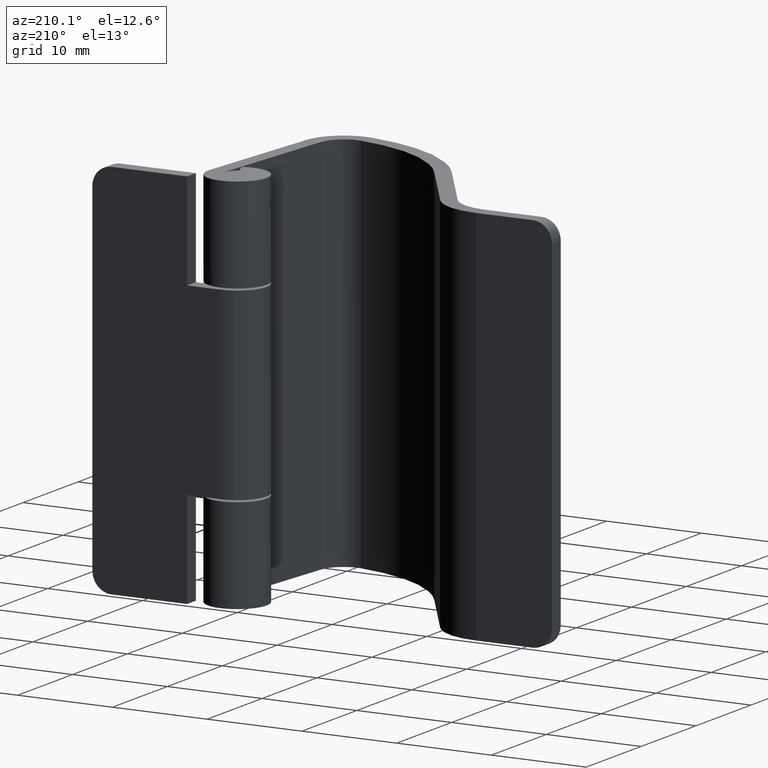
[diagram: clean part render]
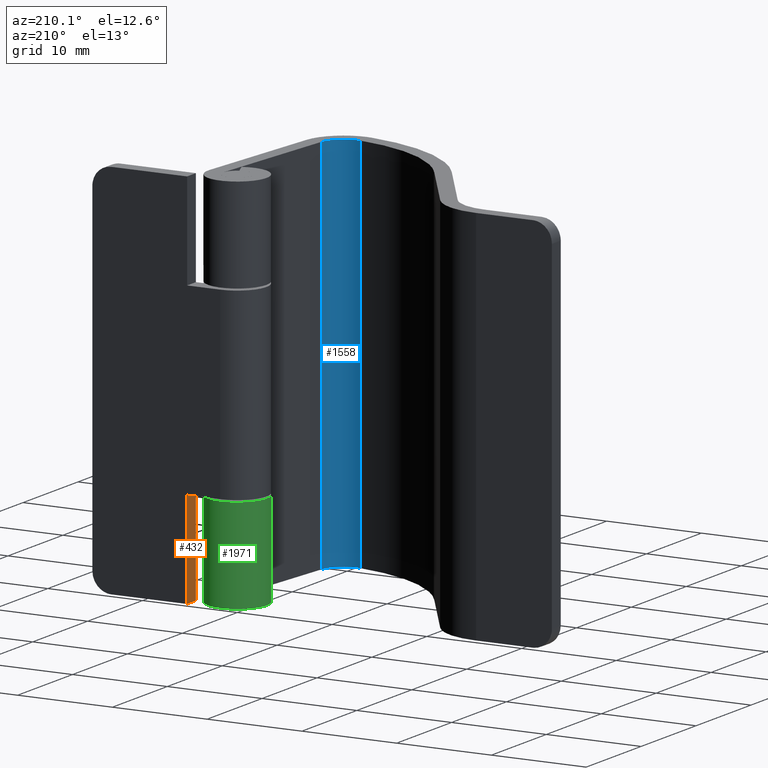
[diagram: same view with three faces highlighted in distinct colors, each labeled with its STEP entity id]
A machine part, auxiliary view with three faces highlighted in distinct colors.
Their STEP definitions:

[orange] entity #432 — the highlighted face is a freeform B-spline surface patch.
#397=CARTESIAN_POINT('',(3.499999999999915,1.420080103001106,-0.509490143588834));
#398=CARTESIAN_POINT('',(3.499999999999915,1.420080103001106,10.709493687613120));
#399=CARTESIAN_POINT('',(3.499999999999915,3.179917939914184,-0.509490143588834));
#400=CARTESIAN_POINT('',(3.499999999999915,3.179917939914184,10.709493687613120));
#401=B_SPLINE_SURFACE_WITH_KNOTS('',1,1,((#397,#399),(#398,#400)),.UNSPECIFIED.,.F.,.F.,.U.,(2,2),(2,2),(0.0,11.218983831201960),(0.041708334948495,0.958291687403247),.UNSPECIFIED.);
#402=CARTESIAN_POINT('',(3.499999999999915,1.500000000000000,0.0));
#403=VERTEX_POINT('',#402);
#404=CARTESIAN_POINT('',(3.499999999999915,3.099998000000000,0.0));
#405=VERTEX_POINT('',#404);
#406=CARTESIAN_POINT('',(3.499999999999915,1.500000000000000,0.0));
#407=CARTESIAN_POINT('',(3.499999999999915,3.099998000000000,0.0));
#408=QUASI_UNIFORM_CURVE('',1,(#406,#407),.UNSPECIFIED.,.F.,.U.);
#409=EDGE_CURVE('',#403,#405,#408,.T.);
#410=ORIENTED_EDGE('',*,*,#409,.F.);
#411=CARTESIAN_POINT('',(3.499999999999915,1.500000000000000,10.200004000000000));
#412=VERTEX_POINT('',#411);
#413=CARTESIAN_POINT('',(3.499999999999915,1.500000000000000,10.200004000000000));
#414=CARTESIAN_POINT('',(3.499999999999915,1.500000000000000,0.0));
#415=QUASI_UNIFORM_CURVE('',1,(#413,#414),.UNSPECIFIED.,.F.,.U.);
#416=EDGE_CURVE('',#412,#403,#415,.T.);
#417=ORIENTED_EDGE('',*,*,#416,.F.);
#418=CARTESIAN_POINT('',(3.499999999999915,3.099998000000000,10.200004000000000));
#419=VERTEX_POINT('',#418);
#420=CARTESIAN_POINT('',(3.499999999999915,1.500000000000000,10.200004000000000));
#421=CARTESIAN_POINT('',(3.499999999999915,3.099998000000000,10.200004000000000));
#422=QUASI_UNIFORM_CURVE('',1,(#420,#421),.UNSPECIFIED.,.F.,.U.);
#423=EDGE_CURVE('',#412,#419,#422,.T.);
#424=ORIENTED_EDGE('',*,*,#423,.T.);
#425=CARTESIAN_POINT('',(3.499999999999915,3.099998000000000,10.200004000000000));
#426=CARTESIAN_POINT('',(3.499999999999915,3.099998000000000,0.0));
#427=QUASI_UNIFORM_CURVE('',1,(#425,#426),.UNSPECIFIED.,.F.,.U.);
#428=EDGE_CURVE('',#419,#405,#427,.T.);
#429=ORIENTED_EDGE('',*,*,#428,.T.);
#430=EDGE_LOOP('',(#410,#417,#424,#429));
#431=FACE_OUTER_BOUND('',#430,.T.);
#432=ADVANCED_FACE('',(#431),#401,.T.);

[blue] entity #1558 — the highlighted face is a freeform B-spline surface patch.
#1276=CARTESIAN_POINT('',(0.146199999999794,-15.539583000000000,40.0));
#1277=VERTEX_POINT('',#1276);
#1283=CARTESIAN_POINT('',(-2.722397774023725,-17.792936032875399,40.0));
#1284=VERTEX_POINT('',#1283);
#1285=CARTESIAN_POINT('',(0.146199999999794,-15.539583000000000,40.0));
#1286=CARTESIAN_POINT('',(0.051799461611755,-16.618591365731003,40.000000000000007));
#1287=CARTESIAN_POINT('',(-0.799964114912295,-17.287672320976618,40.0));
#1288=CARTESIAN_POINT('',(-1.651727691436345,-17.956753276222223,40.000000000000007));
#1289=CARTESIAN_POINT('',(-2.722397774023728,-17.792936032875421,40.0));
#1297=(BOUNDED_CURVE()B_SPLINE_CURVE(2,(#1285,#1286,#1287,#1288,#1289),.UNSPECIFIED.,.F.,.U.)B_SPLINE_CURVE_WITH_KNOTS((3,2,3),(0.0,0.500000000000000,1.0),.UNSPECIFIED.)CURVE()GEOMETRIC_REPRESENTATION_ITEM()RATIONAL_B_SPLINE_CURVE((1.0,0.917582855283460,1.0,0.917582855283460,1.0))REPRESENTATION_ITEM(''));
#1298=EDGE_CURVE('',#1277,#1284,#1297,.T.);
#1380=CARTESIAN_POINT('',(-2.722397774023725,-17.792936032875399,0.0));
#1381=VERTEX_POINT('',#1380);
#1395=CARTESIAN_POINT('',(0.146199999999794,-15.539583000000000,0.0));
#1396=VERTEX_POINT('',#1395);
#1397=CARTESIAN_POINT('',(0.146199999999794,-15.539583000000000,0.0));
#1398=CARTESIAN_POINT('',(0.051799461611755,-16.618591365731003,0.0));
#1399=CARTESIAN_POINT('',(-0.799964114912295,-17.287672320976618,0.0));
#1400=CARTESIAN_POINT('',(-1.651727691436345,-17.956753276222223,0.0));
#1401=CARTESIAN_POINT('',(-2.722397774023728,-17.792936032875421,0.0));
#1409=(BOUNDED_CURVE()B_SPLINE_CURVE(2,(#1397,#1398,#1399,#1400,#1401),.UNSPECIFIED.,.F.,.U.)B_SPLINE_CURVE_WITH_KNOTS((3,2,3),(0.0,0.500000000000000,1.0),.UNSPECIFIED.)CURVE()GEOMETRIC_REPRESENTATION_ITEM()RATIONAL_B_SPLINE_CURVE((1.0,0.917582855283460,1.0,0.917582855283460,1.0))REPRESENTATION_ITEM(''));
#1410=EDGE_CURVE('',#1396,#1381,#1409,.T.);
#1530=CARTESIAN_POINT('',(0.151817241045483,-15.461207070570090,-1.000000000000001));
#1531=CARTESIAN_POINT('',(0.151817241045483,-15.461207070570090,41.025000000000013));
#1532=CARTESIAN_POINT('',(-0.013427287885420,-18.417708022699387,-1.000000000000002));
#1533=CARTESIAN_POINT('',(-0.013427287885420,-18.417708022699387,41.024999999999999));
#1534=CARTESIAN_POINT('',(-2.900362519173444,-17.759066538558706,-1.000000000000001));
#1535=CARTESIAN_POINT('',(-2.900362519173444,-17.759066538558706,41.025000000000013));
#1543=(BOUNDED_SURFACE()B_SPLINE_SURFACE(1,2,((#1530,#1532,#1534),(#1531,#1533,#1535)),.UNSPECIFIED.,.F.,.F.,.U.)B_SPLINE_SURFACE_WITH_KNOTS((2,2),(3,3),(0.0,42.025000000000020),(0.0,4.644641494677113),.UNSPECIFIED.)GEOMETRIC_REPRESENTATION_ITEM()RATIONAL_B_SPLINE_SURFACE(((1.0,0.644198612143035,0.997189142113182),(1.0,0.644198612143035,0.997189142113182)))REPRESENTATION_ITEM('')SURFACE());
#1544=ORIENTED_EDGE('',*,*,#1298,.F.);
#1545=CARTESIAN_POINT('',(0.146199999999794,-15.539583000000000,0.0));
#1546=CARTESIAN_POINT('',(0.146199999999794,-15.539583000000000,40.0));
#1547=QUASI_UNIFORM_CURVE('',1,(#1545,#1546),.UNSPECIFIED.,.F.,.U.);
#1548=EDGE_CURVE('',#1396,#1277,#1547,.T.);
#1549=ORIENTED_EDGE('',*,*,#1548,.F.);
#1550=ORIENTED_EDGE('',*,*,#1410,.T.);
#1551=CARTESIAN_POINT('',(-2.722397774023725,-17.792936032875399,0.0));
#1552=CARTESIAN_POINT('',(-2.722397774023725,-17.792936032875399,40.0));
#1553=QUASI_UNIFORM_CURVE('',1,(#1551,#1552),.UNSPECIFIED.,.F.,.U.);
#1554=EDGE_CURVE('',#1381,#1284,#1553,.T.);
#1555=ORIENTED_EDGE('',*,*,#1554,.T.);
#1556=EDGE_LOOP('',(#1544,#1549,#1550,#1555));
#1557=FACE_OUTER_BOUND('',#1556,.T.);
#1558=ADVANCED_FACE('',(#1557),#1543,.F.);

[green] entity #1971 — the highlighted face is a freeform B-spline surface patch.
#889=CARTESIAN_POINT('',(3.088204999999790,-0.270182999999983,10.0));
#890=VERTEX_POINT('',#889);
#896=CARTESIAN_POINT('',(1.205679970024810,-2.855931509226660,10.0));
#897=VERTEX_POINT('',#896);
#898=CARTESIAN_POINT('',(1.205679970024812,-2.855931509226660,10.0));
#899=CARTESIAN_POINT('',(-0.964918357172471,-3.772286441974952,10.000000000000002));
#900=CARTESIAN_POINT('',(-2.428916450882054,-1.926233072643916,10.0));
#901=CARTESIAN_POINT('',(-3.892914544591641,-0.080179703312878,10.000000000000002));
#902=CARTESIAN_POINT('',(-2.506169561740145,1.824588475059489,10.0));
#903=CARTESIAN_POINT('',(-1.119424578888650,3.729356653431855,10.000000000000002));
#904=CARTESIAN_POINT('',(1.087064025726285,2.903153592127785,10.0));
#905=CARTESIAN_POINT('',(3.293552630341218,2.076950530823714,10.000000000000002));
#906=CARTESIAN_POINT('',(3.088204999999790,-0.270182999999985,10.0));
#914=(BOUNDED_CURVE()B_SPLINE_CURVE(2,(#898,#899,#900,#901,#902,#903,#904,#905,#906),.UNSPECIFIED.,.F.,.U.)B_SPLINE_CURVE_WITH_KNOTS((3,2,2,2,3),(0.0,0.250000000000000,0.500000000000000,0.750000000000000,1.0),.UNSPECIFIED.)CURVE()GEOMETRIC_REPRESENTATION_ITEM()RATIONAL_B_SPLINE_CURVE((1.0,0.796150056244369,1.0,0.796150056244369,1.0,0.796150056244369,1.0,0.796150056244369,1.0))REPRESENTATION_ITEM(''));
#915=EDGE_CURVE('',#897,#890,#914,.T.);
#1440=CARTESIAN_POINT('',(1.205679970024810,-2.855931509226660,0.0));
#1441=VERTEX_POINT('',#1440);
#1447=CARTESIAN_POINT('',(3.088205000000000,-0.270183000000000,0.0));
#1448=VERTEX_POINT('',#1447);
#1449=CARTESIAN_POINT('',(1.205679970024811,-2.855931509226660,0.0));
#1450=CARTESIAN_POINT('',(-0.964918357172471,-3.772286441974952,0.0));
#1451=CARTESIAN_POINT('',(-2.428916450882054,-1.926233072643916,0.0));
#1452=CARTESIAN_POINT('',(-3.892914544591638,-0.080179703312879,0.0));
#1453=CARTESIAN_POINT('',(-2.506169561740146,1.824588475059487,0.0));
#1454=CARTESIAN_POINT('',(-1.119424578888653,3.729356653431852,0.0));
#1455=CARTESIAN_POINT('',(1.087064025726281,2.903153592127787,0.0));
#1456=CARTESIAN_POINT('',(3.293552630341214,2.076950530823721,0.0));
#1457=CARTESIAN_POINT('',(3.088205000000000,-0.270183000000000,0.0));
#1465=(BOUNDED_CURVE()B_SPLINE_CURVE(2,(#1449,#1450,#1451,#1452,#1453,#1454,#1455,#1456,#1457),.UNSPECIFIED.,.F.,.U.)B_SPLINE_CURVE_WITH_KNOTS((3,2,2,2,3),(0.0,0.250000000000000,0.500000000000000,0.750000000000000,1.0),.UNSPECIFIED.)CURVE()GEOMETRIC_REPRESENTATION_ITEM()RATIONAL_B_SPLINE_CURVE((1.0,0.796150056244369,1.0,0.796150056244369,1.0,0.796150056244369,1.0,0.796150056244369,1.0))REPRESENTATION_ITEM(''));
#1466=EDGE_CURVE('',#1441,#1448,#1465,.T.);
#1622=CARTESIAN_POINT('',(1.205679970024810,-2.855931509226660,0.0));
#1623=CARTESIAN_POINT('',(1.205679970024810,-2.855931509226660,10.0));
#1624=QUASI_UNIFORM_CURVE('',1,(#1622,#1623),.UNSPECIFIED.,.F.,.U.);
#1625=EDGE_CURVE('',#1441,#897,#1624,.T.);
#1683=CARTESIAN_POINT('',(3.088205000000000,-0.270183000000000,0.0));
#1684=CARTESIAN_POINT('',(3.088204999999790,-0.270182999999983,10.0));
#1685=QUASI_UNIFORM_CURVE('',1,(#1683,#1684),.UNSPECIFIED.,.F.,.U.);
#1686=EDGE_CURVE('',#1448,#890,#1685,.T.);
#1943=CARTESIAN_POINT('',(1.280026385099468,-2.823391830575750,-0.250000000000000));
#1944=CARTESIAN_POINT('',(1.280026385099468,-2.823391830575750,10.256250000000000));
#1945=CARTESIAN_POINT('',(-2.124794034004695,-4.367017453410401,-0.250000000000001));
#1946=CARTESIAN_POINT('',(-2.124794034004695,-4.367017453410401,10.256250000000001));
#1947=CARTESIAN_POINT('',(-3.011531830894195,-0.735312863360727,-0.250000000000000));
#1948=CARTESIAN_POINT('',(-3.011531830894195,-0.735312863360727,10.256250000000000));
#1949=CARTESIAN_POINT('',(-3.898269627783694,2.896391726688944,-0.250000000000001));
#1950=CARTESIAN_POINT('',(-3.898269627783694,2.896391726688944,10.256250000000001));
#1951=CARTESIAN_POINT('',(-0.165187880127329,3.095597186290834,-0.250000000000000));
#1952=CARTESIAN_POINT('',(-0.165187880127329,3.095597186290834,10.256250000000000));
#1953=CARTESIAN_POINT('',(3.567893867529035,3.294802645892724,-0.250000000000001));
#1954=CARTESIAN_POINT('',(3.567893867529035,3.294802645892724,10.256250000000001));
#1955=CARTESIAN_POINT('',(3.072682706814369,-0.410645782587146,-0.250000000000000));
#1956=CARTESIAN_POINT('',(3.072682706814369,-0.410645782587146,10.256250000000000));
#1964=(BOUNDED_SURFACE()B_SPLINE_SURFACE(1,2,((#1943,#1945,#1947,#1949,#1951,#1953,#1955),(#1944,#1946,#1948,#1950,#1952,#1954,#1956)),.UNSPECIFIED.,.F.,.F.,.U.)B_SPLINE_SURFACE_WITH_KNOTS((2,2),(3,2,2,3),(0.0,10.506250000000000),(0.0,5.826190783326038,11.652381566652080,17.478572349978119),.UNSPECIFIED.)GEOMETRIC_REPRESENTATION_ITEM()RATIONAL_B_SPLINE_SURFACE(((1.0,0.638320090924328,1.0,0.638320090924328,1.0,0.638320090924328,1.0),(1.0,0.638320090924328,1.0,0.638320090924328,1.0,0.638320090924328,1.0)))REPRESENTATION_ITEM('')SURFACE());
#1965=ORIENTED_EDGE('',*,*,#915,.T.);
#1966=ORIENTED_EDGE('',*,*,#1686,.F.);
#1967=ORIENTED_EDGE('',*,*,#1466,.F.);
#1968=ORIENTED_EDGE('',*,*,#1625,.T.);
#1969=EDGE_LOOP('',(#1965,#1966,#1967,#1968));
#1970=FACE_OUTER_BOUND('',#1969,.T.);
#1971=ADVANCED_FACE('',(#1970),#1964,.T.);